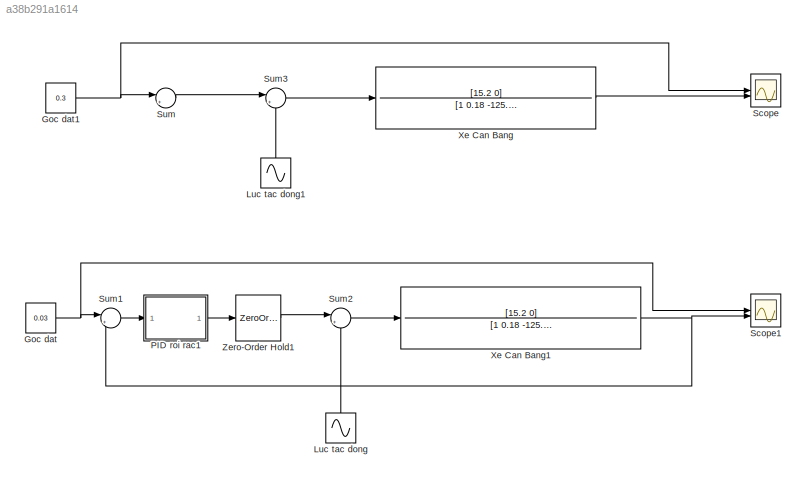
MODEL slx_a38b291a1614
KIND model
CONFIG AbsTol = auto
CONFIG EnableMultiTasking = off
CONFIG FixedStep = 0.01
CONFIG MaxStep = auto
CONFIG MinStep = auto
CONFIG RelTol = 1e-3
CONFIG SampleTimeConstraint = Unconstrained
CONFIG SolverName = FixedStepAuto
CONFIG StartTime = 0.0
CONFIG StopTime = 20
BLOCK [Constant] Goc dat
  SampleTime = 0.01
  Value = 0.03
BLOCK [Constant] Goc dat1
  SampleTime = 0.01
  Value = 0.3
BLOCK [Sin] Luc tac dong
  NameLocation = right
  SampleTime = 0
BLOCK [Sin] Luc tac dong1
  NameLocation = right
  SampleTime = 0
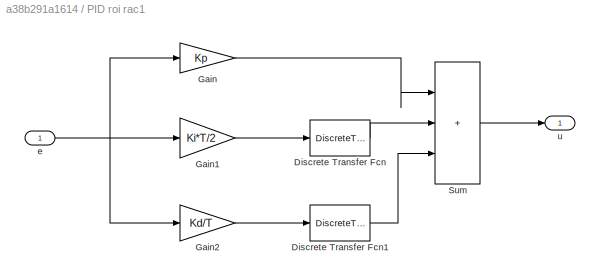
BLOCK [SubSystem] PID roi rac1
BLOCK [DiscreteTransferFcn] PID roi rac1/Discrete Transfer Fcn
  Denominator = [1 -1]
  InputPortMap = u0
  Numerator = [1 1]
BLOCK [DiscreteTransferFcn] PID roi rac1/Discrete Transfer Fcn1
  Denominator = [1 0]
  InputPortMap = u0
  Numerator = [1 -1]
BLOCK [Gain] PID roi rac1/Gain
  Gain = Kp
BLOCK [Gain] PID roi rac1/Gain1
  Gain = Ki*T/2
BLOCK [Gain] PID roi rac1/Gain2
  Gain = Kd/T
BLOCK [Sum] PID roi rac1/Sum
  IconShape = rectangular
  Inputs = |+++
BLOCK [Inport] PID roi rac1/e
BLOCK [Outport] PID roi rac1/u
BLOCK [Scope] Scope
  Floating = off
  NumInputPorts = 2
  ScopeSpecificationString = Simulink.scopes.TimeScopeBlockCfg('CurrentConfiguration', extmgr.ConfigurationSet(extmgr.Configuration('Core','General UI',true,'FigureColor',[1 1 1]),extmgr.Configuration('Core','Source UI',true),extmgr.Configuration('Sources','WiredSimulink',true),extmgr.Configuration('Visuals','Time Domain',true,'SerializedDisplays',{struct('MinYLimReal','-2446238216034812945829635259216799587655995295080148916...<+2460ch>
BLOCK [Scope] Scope1
  Floating = off
  NumInputPorts = 2
  ScopeSpecificationString = Simulink.scopes.TimeScopeBlockCfg('CurrentConfiguration', extmgr.ConfigurationSet(extmgr.Configuration('Core','General UI',true,'FigureColor',[1 1 1]),extmgr.Configuration('Core','Source UI',true),extmgr.Configuration('Sources','WiredSimulink',true,'DataLoggingVariableName','ScopeData1'),extmgr.Configuration('Visuals','Time Domain',true,'SerializedDisplays',{struct('MinYLimReal','-0.00604','MaxYLi...<+1750ch>
BLOCK [Sum] Sum
  Inputs = |+-
BLOCK [Sum] Sum1
  Inputs = |+-
BLOCK [Sum] Sum2
  Inputs = |++
BLOCK [Sum] Sum3
  Inputs = |++
BLOCK [TransferFcn] Xe Can Bang
  Denominator = [1 0.18 -125.2 -14.9]
  Numerator = [15.2 0]
BLOCK [TransferFcn] Xe Can Bang1
  Denominator = [1 0.18 -125.2 -14.9]
  Numerator = [15.2 0]
BLOCK [ZeroOrderHold] Zero-Order Hold1
  SampleTime = 0.01
NET Goc dat1:1 -> Scope:1, Sum:1
NET Goc dat:1 -> Scope1:1, Sum1:1
LINE Luc tac dong1:1 -> Sum3:2
LINE Luc tac dong:1 -> Sum2:2
LINE PID roi rac1/Discrete Transfer Fcn1:1 -> PID roi rac1/Sum:3
LINE PID roi rac1/Discrete Transfer Fcn:1 -> PID roi rac1/Sum:2
LINE PID roi rac1/Gain1:1 -> PID roi rac1/Discrete Transfer Fcn:1
LINE PID roi rac1/Gain2:1 -> PID roi rac1/Discrete Transfer Fcn1:1
LINE PID roi rac1/Gain:1 -> PID roi rac1/Sum:1
LINE PID roi rac1/Sum:1 -> PID roi rac1/u:1
NET PID roi rac1/e:1 -> PID roi rac1/Gain1:1, PID roi rac1/Gain2:1, PID roi rac1/Gain:1
LINE PID roi rac1:1 -> Zero-Order Hold1:1
LINE Sum1:1 -> PID roi rac1:1
LINE Sum2:1 -> Xe Can Bang1:1
LINE Sum3:1 -> Xe Can Bang:1
LINE Sum:1 -> Sum3:1
NET Xe Can Bang1:1 -> Scope1:2, Sum1:2
LINE Xe Can Bang:1 -> Scope:2
LINE Zero-Order Hold1:1 -> Sum2:1
note: NET lines group one-source signal fan-out (src -> all destinations, sorted); 1:1 wires keep LINE
